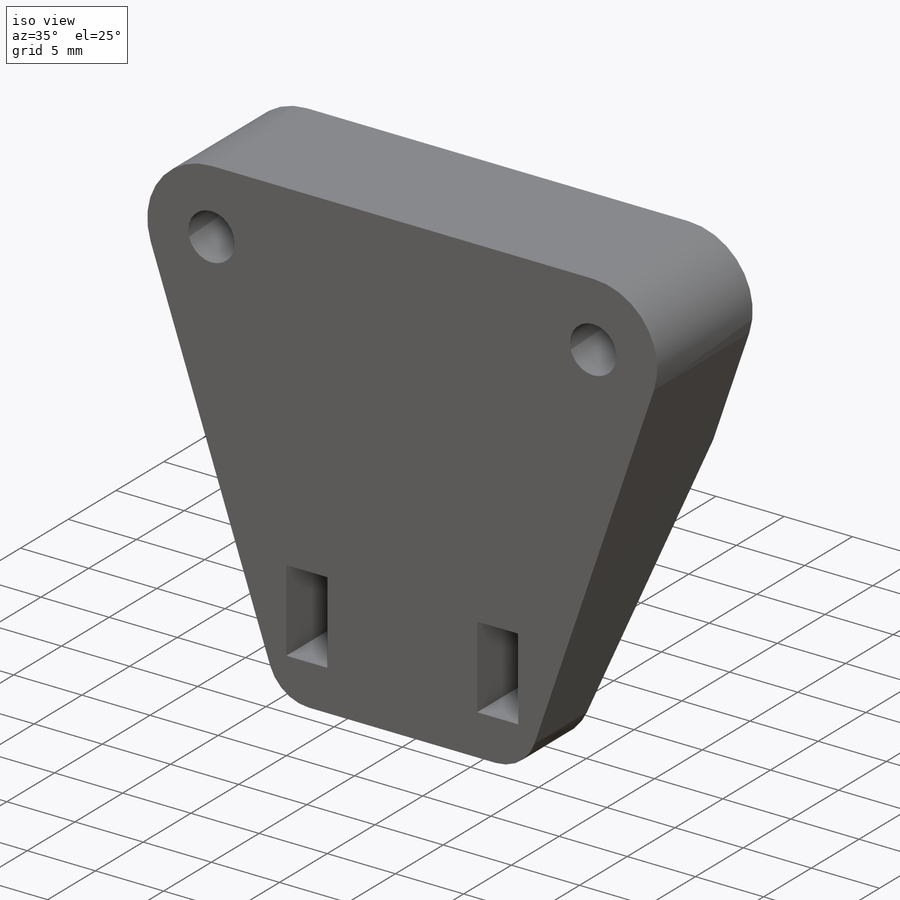
[diagram: iso view]
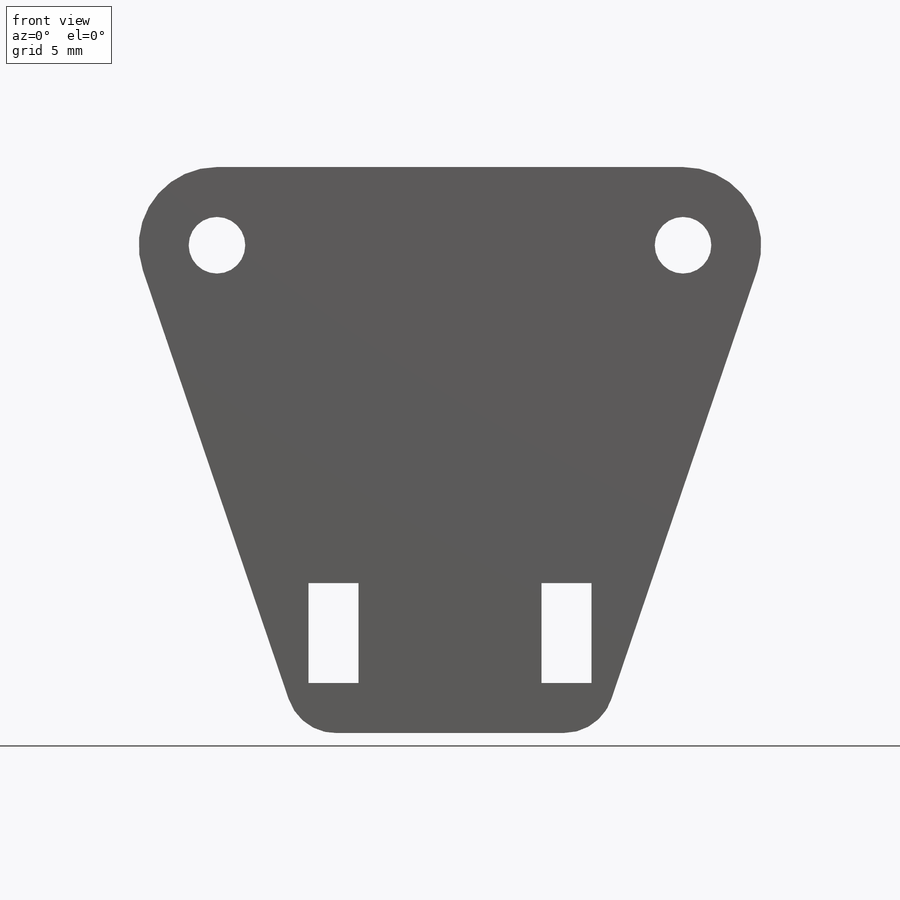
[diagram: front view]
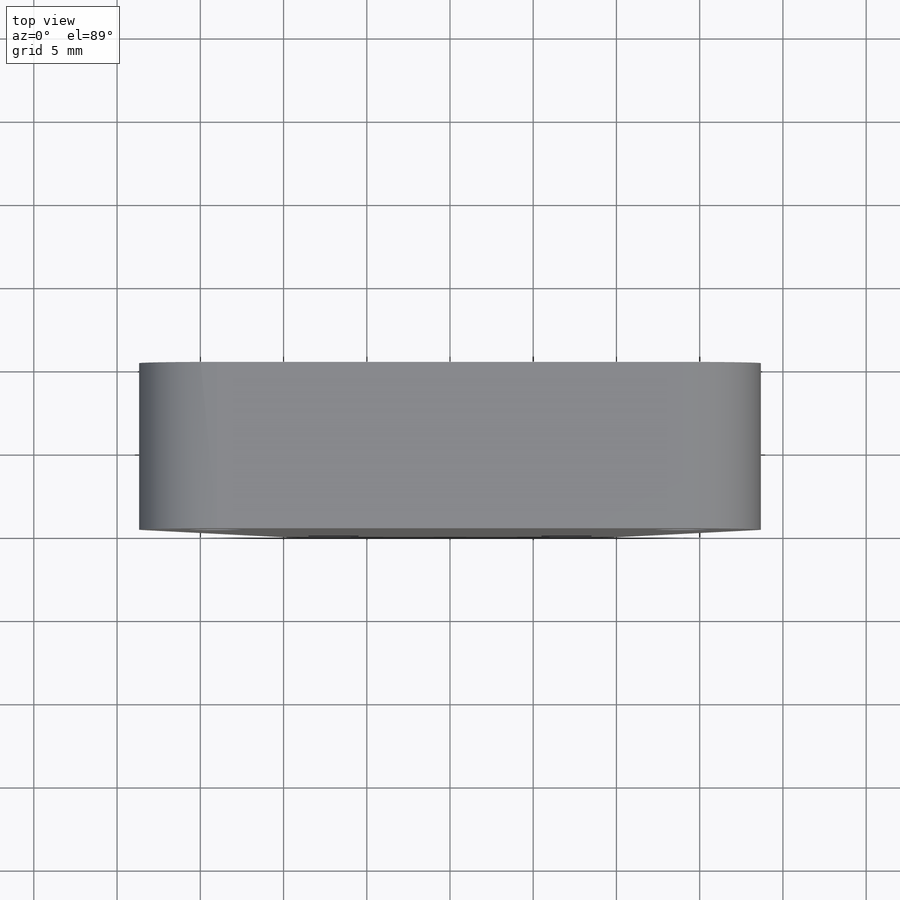
[diagram: top view]
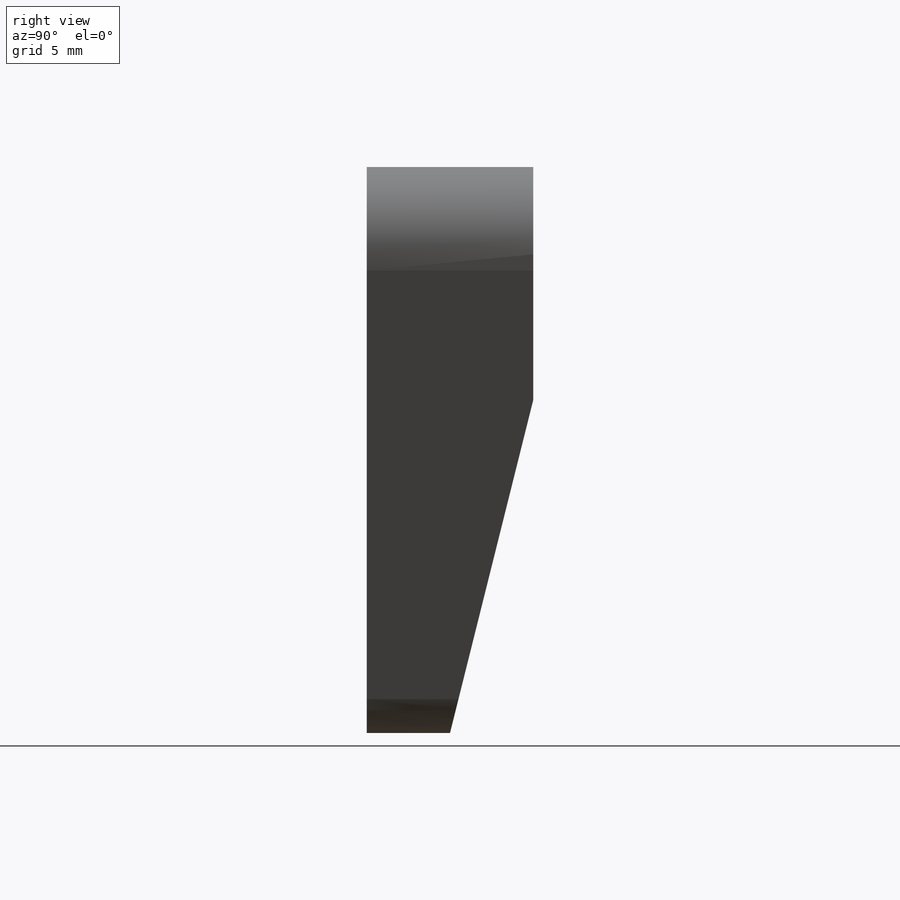
[diagram: right view]
SOLIDWORKS PART (.sldprt)
format: sldprt  version: not decoded by parser v0  size: 222,720 bytes
history: native  units: mm
features: sketch x3, cut_extrude x2, fillet x2, material x1, extrude x1, plane x1 (+12 scaffold rows collapsed)
feature tree (22):
  scaffold x12  (default folders/planes/origin — collapsed)
  material  "Material <not specified>"
  sketch  "Sketch1"  dims[c1.D1=3.4mm c1.D6=4.7mm c1.D10=3.0mm c1.D2=26.0mm c1.D3=26.0mm c2.D2=28.0mm c2.D4=34.0mm c2.D5=18.0mm c2.D6=11.0mm c2.D7=3.0mm c2.D8=6.0mm c2.D9=3.0mm c2.D10=~2.341664mm c2.D3=3.0mm]
  extrude  "Boss-Extrude1"  Depth=10mm
  sketch  "Sketch2"  dims[D1=20.0mm]
  cut_extrude  "Cut-Extrude1"  [1 undecoded]
  plane  "Plane1"
  sketch  "Sketch4"  dims[D1=10.0mm D2=1.0mm]
  cut_extrude  "Cut-Extrude2"  [1 undecoded]
  fillet  "Fillet1"  Radius=3mm
  fillet  "Fillet2"  Radius=6mm
decode coverage: 6 of 8 modeling features carry decoded parameters
note: ~ marks probable driven/reference dimensions
note: 2 parameter values undecoded
note: suppression state not decoded; provenance and decode notes live in map.json
